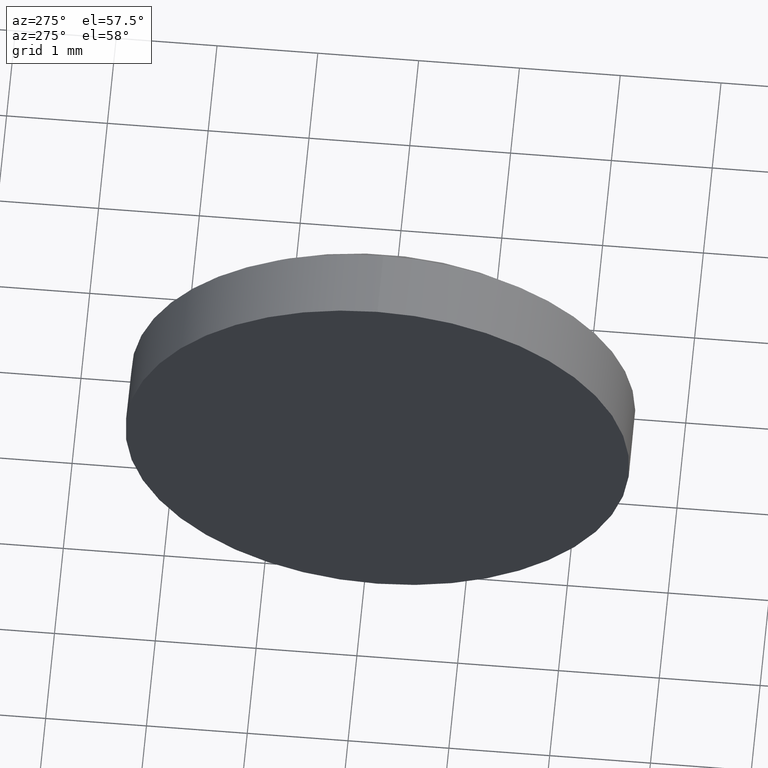
[diagram: clean part render]
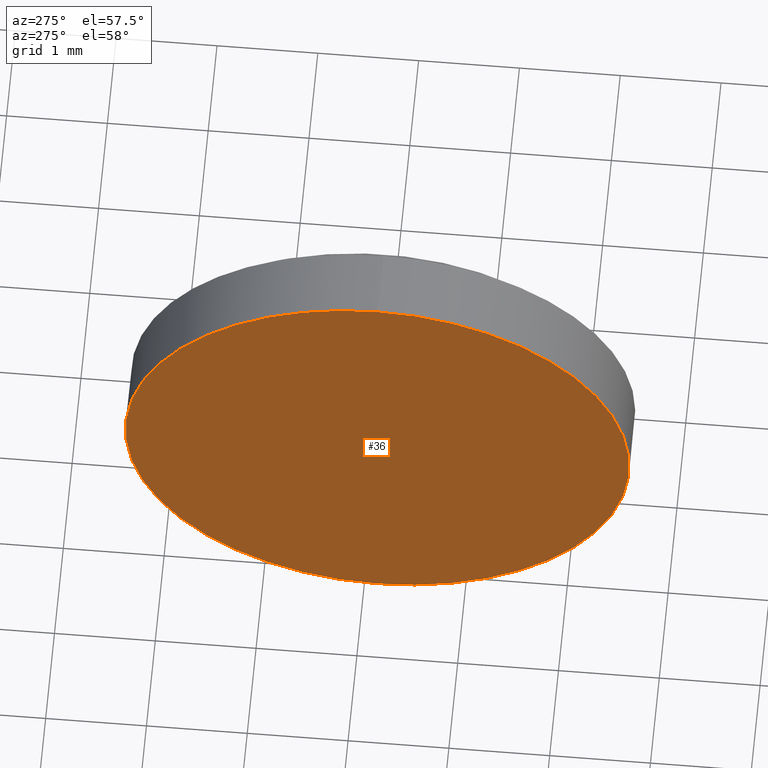
[diagram: same view with one face highlighted and labeled with its STEP entity id]
A machine part, auxiliary view. The second image highlights one B-rep face of the part: STEP entity #36.
In plain terms, the highlighted planar face has unit normal (1, 0, 0).
Its self-contained STEP definition (entity closure, byte-faithful):
#2 = EDGE_CURVE ( 'NONE', #171, #54, #88, .T. ) ;
#16 = ORIENTED_EDGE ( 'NONE', *, *, #2, .T. ) ;
#18 = DIRECTION ( 'NONE',  ( -1.000000000000000000, -0.0000000000000000000, -0.0000000000000000000 ) ) ;
#31 = AXIS2_PLACEMENT_3D ( 'NONE', #95, #162, #92 ) ;
#36 = ADVANCED_FACE ( 'NONE', ( #66 ), #96, .F. ) ;
#40 = CIRCLE ( 'NONE', #65, 2.500000000000002200 ) ;
#50 = DIRECTION ( 'NONE',  ( -1.000000000000000000, -0.0000000000000000000, -0.0000000000000000000 ) ) ;
#54 = VERTEX_POINT ( 'NONE', #146 ) ;
#59 = DIRECTION ( 'NONE',  ( 0.0000000000000000000, 0.0000000000000000000, 1.000000000000000000 ) ) ;
#65 = AXIS2_PLACEMENT_3D ( 'NONE', #97, #50, #59 ) ;
#66 = FACE_OUTER_BOUND ( 'NONE', #156, .T. ) ;
#76 = CARTESIAN_POINT ( 'NONE',  ( 520.7897579000514300, 146.8657861925488500, 0.0000000000000000000 ) ) ;
#88 = CIRCLE ( 'NONE', #185, 2.500000000000002200 ) ;
#92 = DIRECTION ( 'NONE',  ( 0.0000000000000000000, 0.0000000000000000000, -1.000000000000000000 ) ) ;
#95 = CARTESIAN_POINT ( 'NONE',  ( 520.7897579000514300, 146.8657861925488500, 0.0000000000000000000 ) ) ;
#96 = PLANE ( 'NONE',  #31 ) ;
#97 = CARTESIAN_POINT ( 'NONE',  ( 520.7897579000514300, 146.8657861925488500, 0.0000000000000000000 ) ) ;
#134 = ORIENTED_EDGE ( 'NONE', *, *, #177, .T. ) ;
#136 = DIRECTION ( 'NONE',  ( 0.0000000000000000000, 0.0000000000000000000, 1.000000000000000000 ) ) ;
#146 = CARTESIAN_POINT ( 'NONE',  ( 520.7897579000514300, 146.8657861925488500, 2.500000000000002200 ) ) ;
#156 = EDGE_LOOP ( 'NONE', ( #134, #16 ) ) ;
#162 = DIRECTION ( 'NONE',  ( 1.000000000000000000, 0.0000000000000000000, 0.0000000000000000000 ) ) ;
#171 = VERTEX_POINT ( 'NONE', #181 ) ;
#177 = EDGE_CURVE ( 'NONE', #54, #171, #40, .T. ) ;
#181 = CARTESIAN_POINT ( 'NONE',  ( 520.7897579000514300, 146.8657861925488500, -2.500000000000002200 ) ) ;
#185 = AXIS2_PLACEMENT_3D ( 'NONE', #76, #18, #136 ) ;